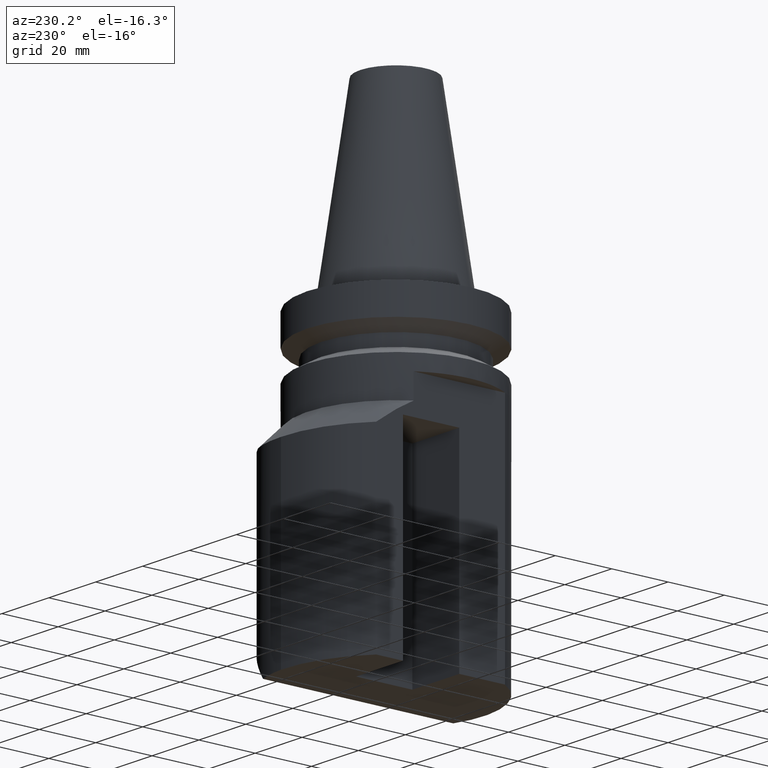
[diagram: clean part render]
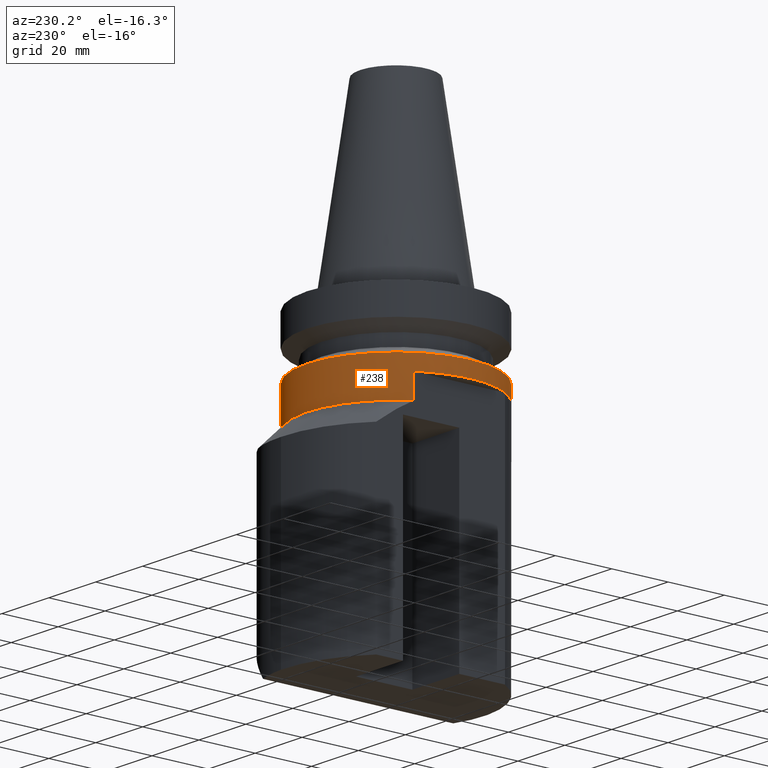
[diagram: same view with one face highlighted and labeled with its STEP entity id]
A machine part, auxiliary view. The second image highlights one B-rep face of the part: STEP entity #238.
In plain terms, the highlighted cylindrical surface (bore or boss wall) has radius 31.5 mm, axis along (0, -0, 1).
Its self-contained STEP definition (entity closure, byte-faithful):
#96=EDGE_CURVE('Unnamed[1]',#270,#270,#271,.T.);
#112=EDGE_CURVE('Unnamed[1]',#296,#297,#298,.T.);
#134=EDGE_CURVE('Unnamed[1]',#329,#330,#331,.T.);
#140=EDGE_CURVE('Unnamed[1]',#330,#341,#342,.T.);
#211=EDGE_CURVE('Unnamed[1]',#296,#341,#438,.T.);
#231=EDGE_CURVE('Unnamed[1]',#297,#329,#461,.T.);
#238=ADVANCED_FACE('Unnamed[1]',(#468,#469),#470,.T.);
#270=VERTEX_POINT('',#497);
#271=CIRCLE('',#498,31.5000000000001);
#296=VERTEX_POINT('',#531);
#297=VERTEX_POINT('',#532);
#298=LINE('',#533,#534);
#329=VERTEX_POINT('',#599);
#330=VERTEX_POINT('',#600);
#331=LINE('',#601,#602);
#341=VERTEX_POINT('',#616);
#342=ELLIPSE('',#617,181.401270219024,31.4999999999999);
#438=CIRCLE('',#774,31.4999999999998);
#461=CIRCLE('',#812,31.5000000000001);
#468=FACE_BOUND('',#823,.T.);
#469=FACE_BOUND('',#824,.T.);
#470=CYLINDRICAL_SURFACE('',#825,31.4999999999999);
#497=CARTESIAN_POINT('',(31.4999999533057,0.00171515177132035,-21.5999999999999));
#498=AXIS2_PLACEMENT_3D('',#846,#847,#848);
#531=CARTESIAN_POINT('',(-27.0000000001168,16.2249807393932,-35.3000000000013));
#532=CARTESIAN_POINT('',(-27.0000000001168,16.2249807393938,-26.9999999999999));
#533=CARTESIAN_POINT('',(-27.0000000001168,16.2249807393935,-28.4500000000006));
#534=VECTOR('',#875,1.0);
#599=CARTESIAN_POINT('',(31.4999999533057,0.00171515184068361,-26.9999999999999));
#600=CARTESIAN_POINT('',(31.4999999533056,0.00171515031220165,-35.0000000000056));
#601=CARTESIAN_POINT('',(31.4999999533056,0.00171515031217251,-272.996571842879));
#602=VECTOR('',#922,1.0);
#616=CARTESIAN_POINT('',(31.4471019057867,1.82476895169024,-35.3000000000013));
#617=AXIS2_PLACEMENT_3D('',#927,#928,#929);
#774=AXIS2_PLACEMENT_3D('',#1041,#1042,#1043);
#812=AXIS2_PLACEMENT_3D('',#1063,#1064,#1065);
#823=EDGE_LOOP('',(#1071,#1072,#1073,#1074,#1075));
#824=EDGE_LOOP('',(#1076));
#825=AXIS2_PLACEMENT_3D('',#1077,#1078,#1079);
#846=CARTESIAN_POINT('',(-1.32261854307913E-015,-2.8695346803103E-015,-21.5999999999999));
#847=DIRECTION('',(-6.12323399573676E-017,1.97960454588128E-016,-1.0));
#848=DIRECTION('',(-1.22464679914735E-016,-1.0,-1.97960454588128E-016));
#875=DIRECTION('',(6.12323399573676E-017,-1.97960454588128E-016,1.0));
#922=DIRECTION('',(-6.12323399573677E-017,-1.22464679914735E-016,-1.0));
#927=CARTESIAN_POINT('',(-1.30820063742531E-014,3.51478555151006E-014,-213.645377317954));
#928=DIRECTION('',(-0.984807753012208,1.41869934745947E-016,0.173648177666931));
#929=DIRECTION('',(-0.173648177666931,2.16218758963967E-016,-0.984807753012208));
#1041=CARTESIAN_POINT('',(-2.16150160049516E-015,-1.57476452452659E-016,-35.3000000000013));
#1042=DIRECTION('',(-6.12323399573676E-017,1.97960454588128E-016,-1.0));
#1043=DIRECTION('',(-1.22464679914735E-016,-1.0,-1.97960454588128E-016));
#1063=CARTESIAN_POINT('',(-1.32261854307913E-015,-2.8695346803103E-015,-26.9999999999999));
#1064=DIRECTION('',(6.12323399573676E-017,-1.97960454588128E-016,1.0));
#1065=DIRECTION('',(-1.22464679914735E-016,-1.0,-1.97960454588128E-016));
#1071=ORIENTED_EDGE('',*,*,#231,.T.);
#1072=ORIENTED_EDGE('',*,*,#134,.T.);
#1073=ORIENTED_EDGE('',*,*,#140,.T.);
#1074=ORIENTED_EDGE('',*,*,#211,.F.);
#1075=ORIENTED_EDGE('',*,*,#112,.T.);
#1076=ORIENTED_EDGE('',*,*,#96,.T.);
#1077=CARTESIAN_POINT('',(-1.74206007178715E-015,-1.51350556638148E-015,-28.4500000000006));
#1078=DIRECTION('',(6.12323399573676E-017,-1.97960454588128E-016,1.0));
#1079=DIRECTION('',(-1.22464679914735E-016,-1.0,-1.97960454588128E-016));